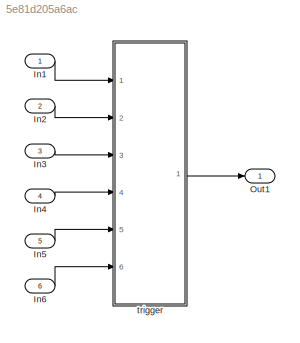
MODEL slx_5e81d205a6ac
KIND model
CONFIG AbsTol = auto
CONFIG EnableMultiTasking = off
CONFIG FixedStep = auto
CONFIG MaxStep = auto
CONFIG MinStep = auto
CONFIG RelTol = 1e-3
CONFIG SampleTimeConstraint = Unconstrained
CONFIG Solver = FixedStepDiscrete
CONFIG SolverName = FixedStepDiscrete
CONFIG StartTime = 0.0
CONFIG StopTime = 10.0
BLOCK [Inport] In1
  IconDisplay = Port number
BLOCK [Inport] In2
  IconDisplay = Port number
  Port = 2
BLOCK [Inport] In3
  IconDisplay = Port number
  Port = 3
BLOCK [Inport] In4
  IconDisplay = Port number
  Port = 4
BLOCK [Inport] In5
  IconDisplay = Port number
  Port = 5
BLOCK [Inport] In6
  IconDisplay = Port number
  Port = 6
BLOCK [Outport] Out1
  IconDisplay = Port number
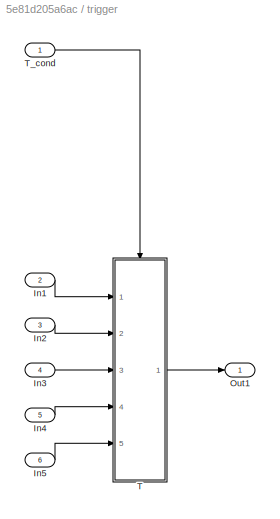
BLOCK [SubSystem] trigger
  AncestorBlock = Block_TestLib/trigger
  Ports = [6, 1]
  RequestExecContextInheritance = off
  Variant = off
BLOCK [Inport] trigger/In1
  IconDisplay = Port number
  Port = 2
BLOCK [Inport] trigger/In2
  IconDisplay = Port number
  Port = 3
BLOCK [Inport] trigger/In3
  IconDisplay = Port number
  Port = 4
BLOCK [Inport] trigger/In4
  IconDisplay = Port number
  Port = 5
BLOCK [Inport] trigger/In5
  IconDisplay = Port number
  Port = 6
BLOCK [Outport] trigger/Out1
  IconDisplay = Port number
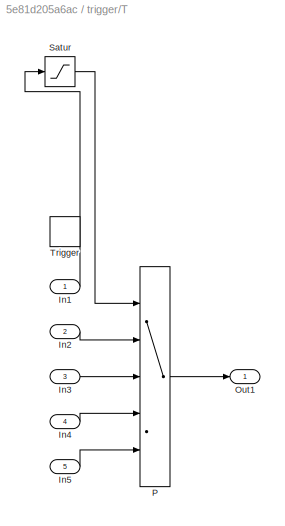
BLOCK [SubSystem] trigger/T
  Ports = [5, 1, 0, 1]
  RequestExecContextInheritance = off
  TreatAsAtomicUnit = on
  Variant = off
BLOCK [Inport] trigger/T/In1
  IconDisplay = Port number
  OutMax = 5
  OutMin = 1
BLOCK [Inport] trigger/T/In2
  IconDisplay = Port number
  Port = 2
  PortDimensions = [2,3]
BLOCK [Inport] trigger/T/In3
  IconDisplay = Port number
  Port = 3
  PortDimensions = [2,3]
BLOCK [Inport] trigger/T/In4
  IconDisplay = Port number
  Port = 4
  PortDimensions = [2,3]
BLOCK [Inport] trigger/T/In5
  IconDisplay = Port number
  Port = 5
  PortDimensions = [2,3]
BLOCK [Outport] trigger/T/Out1
  IconDisplay = Port number
BLOCK [MultiPortSwitch] trigger/T/P
  DataPortForDefault = Additional data port
  DataPortIndices = {[1,4],[2,3],[5,6]}
  DataPortOrder = Specify indices
  InputSameDT = off
  Ports = [5, 1]
  SaturateOnIntegerOverflow = off
BLOCK [Saturate] trigger/T/Satur
  InputPortMap = u0
  LowerLimit = 1
  Ports = [1, 1]
  UpperLimit = 5
BLOCK [TriggerPort] trigger/T/Trigger
  Ports = []
  StatesWhenEnabling = held
  VariantControl = Variant
BLOCK [Inport] trigger/T_cond
  IconDisplay = Port number
  OutDataTypeStr = boolean
LINE In1:1 -> trigger:1
LINE In2:1 -> trigger:2
LINE In3:1 -> trigger:3
LINE In4:1 -> trigger:4
LINE In5:1 -> trigger:5
LINE In6:1 -> trigger:6
LINE trigger:1 -> Out1:1
